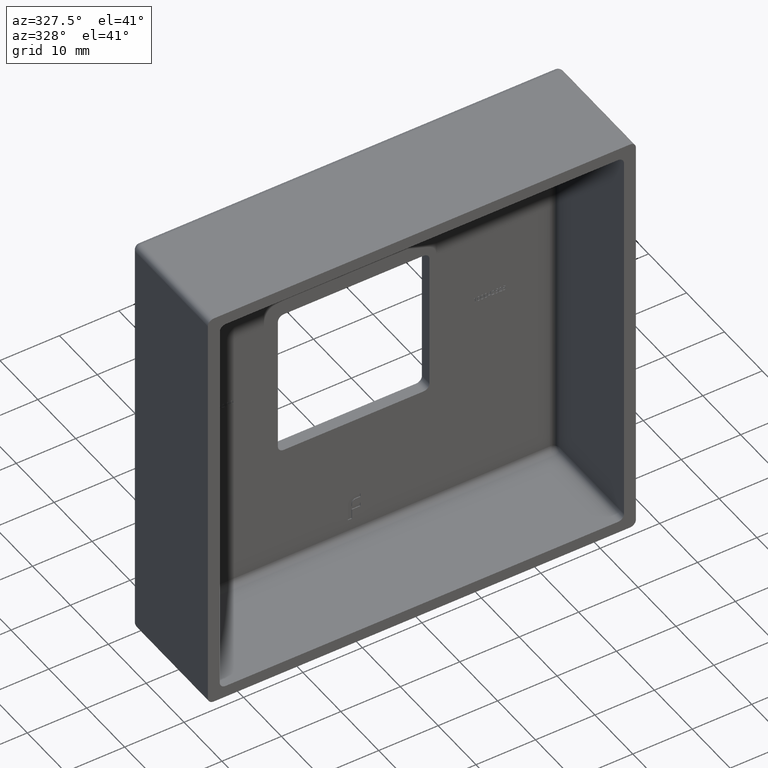
[diagram: clean part render]
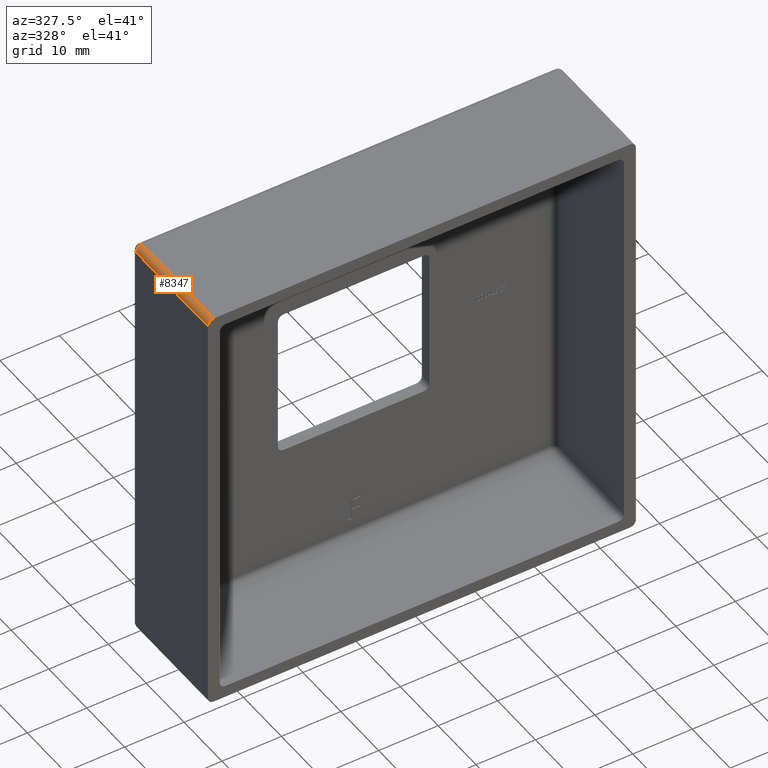
[diagram: same view with one face highlighted and labeled with its STEP entity id]
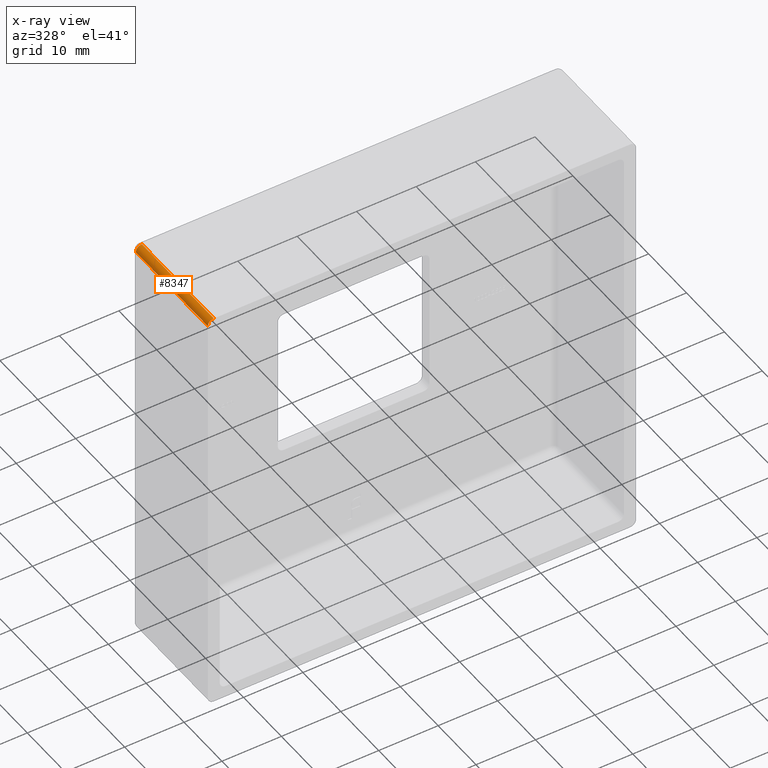
[diagram: x-ray of the same camera — body ghosted, the highlighted face saturated]
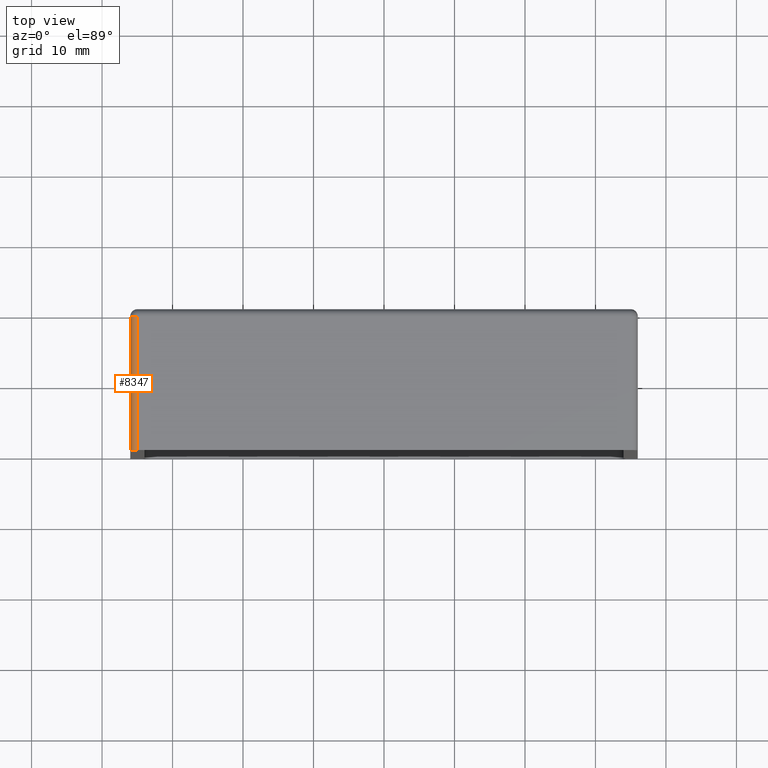
[diagram: same view with one face highlighted and labeled with its STEP entity id]
A machine part, auxiliary view. The second image highlights one B-rep face of the part: STEP entity #8347.
The next image is the same camera in x-ray: the body ghosted, the highlighted face saturated — about 0% of this face is hidden behind the body in this view.
A second angle (top view) of the same face is appended — the face is thin or edge-on in the first view.
In plain terms, the highlighted cylindrical surface (edge-blend (fillet) strip) has radius 1 mm, axis along (0, -1, 0).
Its self-contained STEP definition (entity closure, byte-faithful):
#401 = DIRECTION ( 'NONE',  ( 0.000000000000000000, 0.000000000000000000, -1.000000000000000000 ) ) ;
#907 = LINE ( 'NONE', #11095, #9712 ) ;
#1172 = DIRECTION ( 'NONE',  ( -0.000000000000000000, 1.000000000000000000, -0.000000000000000000 ) ) ;
#1313 = CIRCLE ( 'NONE', #4864, 1.000000000000000888 ) ;
#1994 = EDGE_CURVE ( 'NONE', #15693, #8293, #12467, .T. ) ;
#2980 = CARTESIAN_POINT ( 'NONE',  ( -35.00000000000000711, 19.00000000000000000, 35.99999999999999289 ) ) ;
#3411 = DIRECTION ( 'NONE',  ( 0.000000000000000000, -1.000000000000000000, 0.000000000000000000 ) ) ;
#3781 = FACE_OUTER_BOUND ( 'NONE', #12316, .T. ) ;
#4326 = CARTESIAN_POINT ( 'NONE',  ( -35.00000000000000711, 0.000000000000000000, 35.99999999999999289 ) ) ;
#4348 = DIRECTION ( 'NONE',  ( 0.000000000000000000, 0.000000000000000000, 1.000000000000000000 ) ) ;
#4370 = CARTESIAN_POINT ( 'NONE',  ( -35.00000000000000711, 0.000000000000000000, 34.99999999999999289 ) ) ;
#4419 = ORIENTED_EDGE ( 'NONE', *, *, #8283, .F. ) ;
#4864 = AXIS2_PLACEMENT_3D ( 'NONE', #15085, #15031, #4348 ) ;
#5359 = VERTEX_POINT ( 'NONE', #6835 ) ;
#5535 = LINE ( 'NONE', #15410, #15631 ) ;
#5752 = CARTESIAN_POINT ( 'NONE',  ( -36.00000000000001421, 0.000000000000000000, 34.99999999999998579 ) ) ;
#6835 = CARTESIAN_POINT ( 'NONE',  ( -36.00000000000001421, 19.00000000000000000, 34.99999999999999289 ) ) ;
#7252 = AXIS2_PLACEMENT_3D ( 'NONE', #4370, #16086, #16190 ) ;
#7872 = CYLINDRICAL_SURFACE ( 'NONE', #16093, 1.000000000000000888 ) ;
#8283 = EDGE_CURVE ( 'NONE', #5359, #16997, #1313, .T. ) ;
#8293 = VERTEX_POINT ( 'NONE', #5752 ) ;
#8347 = ADVANCED_FACE ( 'NONE', ( #3781 ), #7872, .T. ) ;
#8410 = DIRECTION ( 'NONE',  ( 0.000000000000000000, -1.000000000000000000, 0.000000000000000000 ) ) ;
#8988 = ORIENTED_EDGE ( 'NONE', *, *, #15248, .F. ) ;
#9712 = VECTOR ( 'NONE', #3411, 1000.000000000000000 ) ;
#11095 = CARTESIAN_POINT ( 'NONE',  ( -35.00000000000000711, 20.00000000000000000, 35.99999999999999289 ) ) ;
#11585 = EDGE_CURVE ( 'NONE', #16997, #15693, #907, .T. ) ;
#12316 = EDGE_LOOP ( 'NONE', ( #16576, #15354, #4419, #8988 ) ) ;
#12467 = CIRCLE ( 'NONE', #7252, 1.000000000000000888 ) ;
#15031 = DIRECTION ( 'NONE',  ( 0.000000000000000000, 1.000000000000000000, -0.000000000000000000 ) ) ;
#15085 = CARTESIAN_POINT ( 'NONE',  ( -35.00000000000000711, 19.00000000000000000, 34.99999999999999289 ) ) ;
#15248 = EDGE_CURVE ( 'NONE', #8293, #5359, #5535, .T. ) ;
#15354 = ORIENTED_EDGE ( 'NONE', *, *, #11585, .F. ) ;
#15410 = CARTESIAN_POINT ( 'NONE',  ( -36.00000000000001421, 20.00000000000000000, 34.99999999999998579 ) ) ;
#15631 = VECTOR ( 'NONE', #1172, 1000.000000000000000 ) ;
#15693 = VERTEX_POINT ( 'NONE', #4326 ) ;
#16086 = DIRECTION ( 'NONE',  ( -0.000000000000000000, -1.000000000000000000, -0.000000000000000000 ) ) ;
#16093 = AXIS2_PLACEMENT_3D ( 'NONE', #16282, #8410, #401 ) ;
#16190 = DIRECTION ( 'NONE',  ( 0.000000000000000000, 0.000000000000000000, 1.000000000000000000 ) ) ;
#16282 = CARTESIAN_POINT ( 'NONE',  ( -35.00000000000000711, 20.00000000000000000, 34.99999999999999289 ) ) ;
#16576 = ORIENTED_EDGE ( 'NONE', *, *, #1994, .F. ) ;
#16997 = VERTEX_POINT ( 'NONE', #2980 ) ;